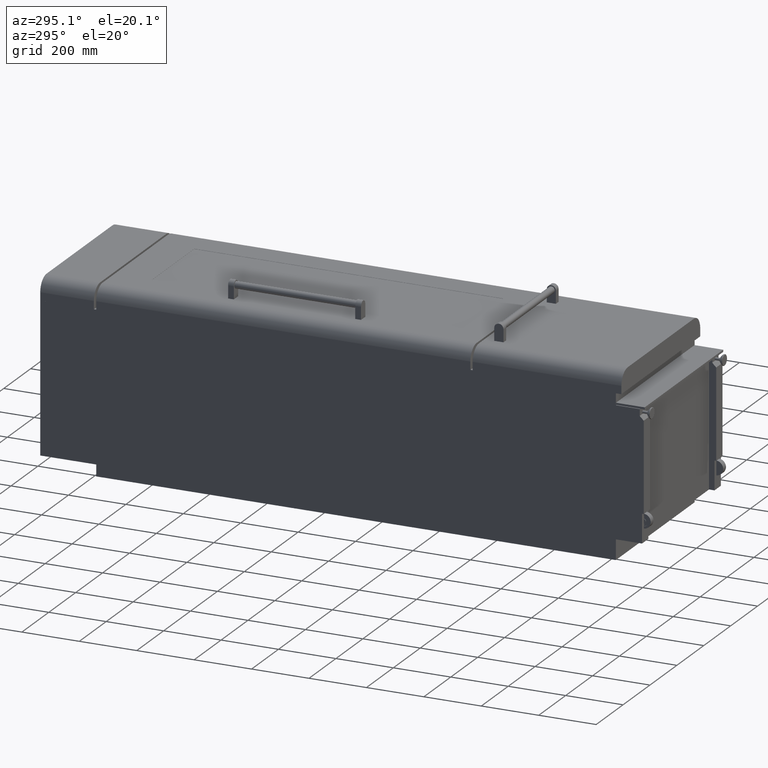
[diagram: clean part render]
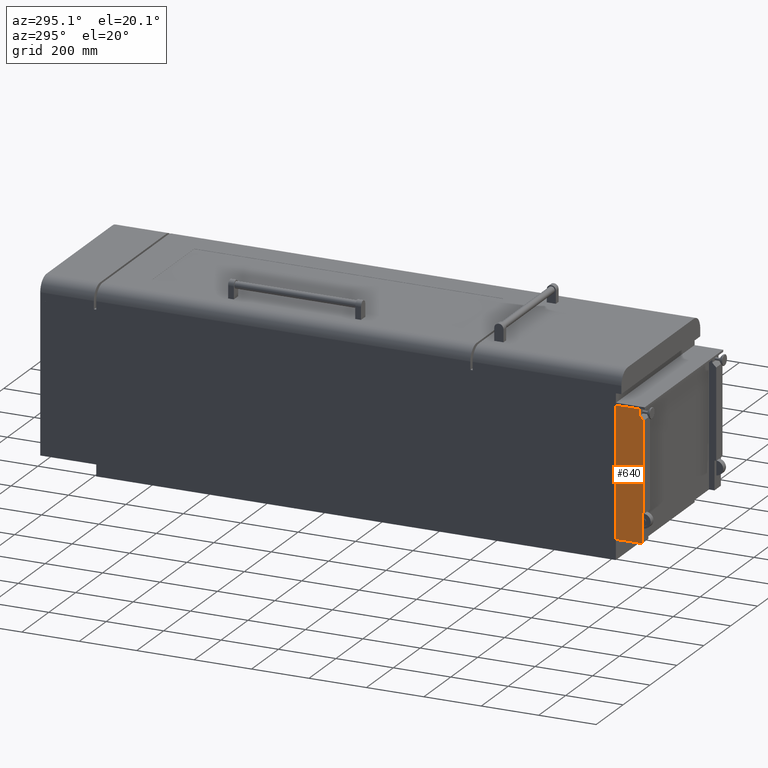
[diagram: same view with one face highlighted and labeled with its STEP entity id]
A machine part, auxiliary view. The second image highlights one B-rep face of the part: STEP entity #640.
In plain terms, the highlighted planar face has unit normal (1, 0, 0).
Its self-contained STEP definition (entity closure, byte-faithful):
#71 = ORIENTED_EDGE ( 'NONE', *, *, #2767, .T. ) ;
#109 = CARTESIAN_POINT ( 'NONE',  ( -292.9999999999998300, -856.5500000000001800, -280.0000000000000000 ) ) ;
#126 = LINE ( 'NONE', #109, #4483 ) ;
#145 = CARTESIAN_POINT ( 'NONE',  ( -293.0000000000000000, 0.0000000000000000000, 0.0000000000000000000 ) ) ;
#327 = CARTESIAN_POINT ( 'NONE',  ( -293.0000000000000000, -947.5500000000007500, -210.3999999999997800 ) ) ;
#364 = VERTEX_POINT ( 'NONE', #327 ) ;
#373 = CARTESIAN_POINT ( 'NONE',  ( -293.0000000000000000, -939.3499999999999100, 240.0000000000002000 ) ) ;
#443 = CARTESIAN_POINT ( 'NONE',  ( -292.9999999999998300, -856.5500000000001800, -210.3999999999997800 ) ) ;
#628 = EDGE_CURVE ( 'NONE', #2555, #1377, #126, .T. ) ;
#640 = ADVANCED_FACE ( 'NONE', ( #3306 ), #2510, .F. ) ;
#642 = CARTESIAN_POINT ( 'NONE',  ( -293.0000000000000000, -939.3499999999999100, 240.0000000000002000 ) ) ;
#645 = ORIENTED_EDGE ( 'NONE', *, *, #628, .F. ) ;
#755 = VERTEX_POINT ( 'NONE', #1411 ) ;
#762 = CARTESIAN_POINT ( 'NONE',  ( -293.0000000000000000, -953.3499999999999100, 279.9999999999999400 ) ) ;
#785 = DIRECTION ( 'NONE',  ( -0.0000000000000000000, -0.0000000000000000000, 1.000000000000000000 ) ) ;
#930 = DIRECTION ( 'NONE',  ( 1.000000000000000000, 0.0000000000000000000, 0.0000000000000000000 ) ) ;
#1071 = DIRECTION ( 'NONE',  ( -0.0000000000000000000, -1.000000000000000000, 9.570888143321918500E-015 ) ) ;
#1165 = DIRECTION ( 'NONE',  ( 0.0000000000000000000, 0.0000000000000000000, -1.000000000000000000 ) ) ;
#1214 = VECTOR ( 'NONE', #3407, 1000.000000000000000 ) ;
#1377 = VERTEX_POINT ( 'NONE', #4256 ) ;
#1411 = CARTESIAN_POINT ( 'NONE',  ( -293.0000000000000000, -947.5500000000007500, -110.3999999999987800 ) ) ;
#1435 = VECTOR ( 'NONE', #2192, 1000.000000000000000 ) ;
#1459 = CARTESIAN_POINT ( 'NONE',  ( -293.0000000000000000, -953.3499999999999100, 203.1000000000014700 ) ) ;
#1650 = LINE ( 'NONE', #3054, #4866 ) ;
#1680 = EDGE_CURVE ( 'NONE', #3080, #2432, #2380, .T. ) ;
#2068 = EDGE_LOOP ( 'NONE', ( #3685, #645, #71, #3987, #5030, #4036, #4449, #4647 ) ) ;
#2101 = LINE ( 'NONE', #5129, #3530 ) ;
#2142 = DIRECTION ( 'NONE',  ( 0.0000000000000000000, 0.0000000000000000000, -1.000000000000000000 ) ) ;
#2192 = DIRECTION ( 'NONE',  ( -0.0000000000000000000, -1.000000000000000000, -0.0000000000000000000 ) ) ;
#2250 = VERTEX_POINT ( 'NONE', #3741 ) ;
#2355 = VECTOR ( 'NONE', #1165, 1000.000000000000000 ) ;
#2380 = LINE ( 'NONE', #3310, #4648 ) ;
#2432 = VERTEX_POINT ( 'NONE', #373 ) ;
#2454 = EDGE_CURVE ( 'NONE', #364, #755, #2101, .T. ) ;
#2510 = PLANE ( 'NONE',  #3939 ) ;
#2544 = LINE ( 'NONE', #1459, #4933 ) ;
#2555 = VERTEX_POINT ( 'NONE', #443 ) ;
#2767 = EDGE_CURVE ( 'NONE', #2555, #364, #4444, .T. ) ;
#2879 = EDGE_CURVE ( 'NONE', #2250, #3080, #2544, .T. ) ;
#3002 = CARTESIAN_POINT ( 'NONE',  ( -293.0000000000000000, -947.5500000000007500, -210.3999999999997800 ) ) ;
#3054 = CARTESIAN_POINT ( 'NONE',  ( -293.0000000000000000, -953.3499999999998000, -110.3999999999987300 ) ) ;
#3080 = VERTEX_POINT ( 'NONE', #4744 ) ;
#3101 = EDGE_CURVE ( 'NONE', #2250, #4497, #3777, .T. ) ;
#3306 = FACE_OUTER_BOUND ( 'NONE', #2068, .T. ) ;
#3310 = CARTESIAN_POINT ( 'NONE',  ( -293.0000000000000000, -939.3499999999999100, 217.1000000000014700 ) ) ;
#3407 = DIRECTION ( 'NONE',  ( 0.0000000000000000000, 1.000000000000000000, 0.0000000000000000000 ) ) ;
#3445 = CARTESIAN_POINT ( 'NONE',  ( -293.0000000000000000, -953.3499999999998000, -110.3999999999987300 ) ) ;
#3530 = VECTOR ( 'NONE', #785, 1000.000000000000000 ) ;
#3603 = EDGE_CURVE ( 'NONE', #755, #4497, #1650, .T. ) ;
#3685 = ORIENTED_EDGE ( 'NONE', *, *, #5147, .T. ) ;
#3741 = CARTESIAN_POINT ( 'NONE',  ( -293.0000000000000000, -953.3499999999999100, 203.1000000000014700 ) ) ;
#3777 = LINE ( 'NONE', #762, #2355 ) ;
#3939 = AXIS2_PLACEMENT_3D ( 'NONE', #145, #930, #2142 ) ;
#3987 = ORIENTED_EDGE ( 'NONE', *, *, #2454, .T. ) ;
#4036 = ORIENTED_EDGE ( 'NONE', *, *, #3101, .F. ) ;
#4092 = LINE ( 'NONE', #642, #1214 ) ;
#4172 = DIRECTION ( 'NONE',  ( -0.0000000000000000000, -0.0000000000000000000, 1.000000000000000000 ) ) ;
#4253 = DIRECTION ( 'NONE',  ( 0.0000000000000000000, 0.7071067811865483500, 0.7071067811865468000 ) ) ;
#4256 = CARTESIAN_POINT ( 'NONE',  ( -292.9999999999998300, -856.5500000000001800, 240.0000000000002000 ) ) ;
#4444 = LINE ( 'NONE', #3002, #1435 ) ;
#4449 = ORIENTED_EDGE ( 'NONE', *, *, #2879, .T. ) ;
#4483 = VECTOR ( 'NONE', #4172, 1000.000000000000000 ) ;
#4497 = VERTEX_POINT ( 'NONE', #3445 ) ;
#4515 = DIRECTION ( 'NONE',  ( 0.0000000000000000000, 0.0000000000000000000, 1.000000000000000000 ) ) ;
#4647 = ORIENTED_EDGE ( 'NONE', *, *, #1680, .T. ) ;
#4648 = VECTOR ( 'NONE', #4515, 1000.000000000000000 ) ;
#4744 = CARTESIAN_POINT ( 'NONE',  ( -293.0000000000000000, -939.3499999999999100, 217.1000000000014200 ) ) ;
#4866 = VECTOR ( 'NONE', #1071, 1000.000000000000000 ) ;
#4933 = VECTOR ( 'NONE', #4253, 999.9999999999998900 ) ;
#5030 = ORIENTED_EDGE ( 'NONE', *, *, #3603, .T. ) ;
#5129 = CARTESIAN_POINT ( 'NONE',  ( -293.0000000000000000, -947.5500000000007500, -110.3999999999987800 ) ) ;
#5147 = EDGE_CURVE ( 'NONE', #2432, #1377, #4092, .T. ) ;